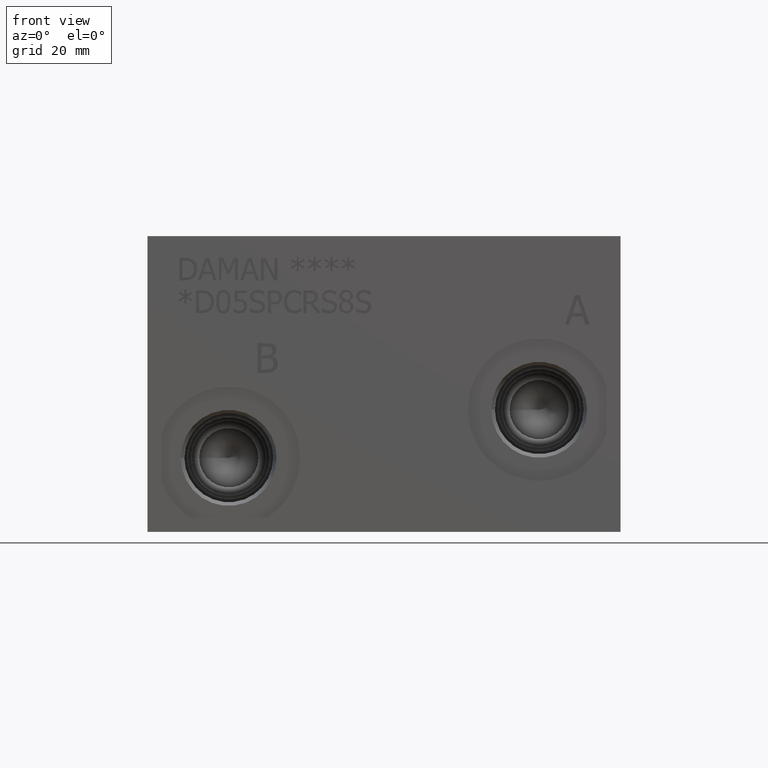
[diagram: clean part render]
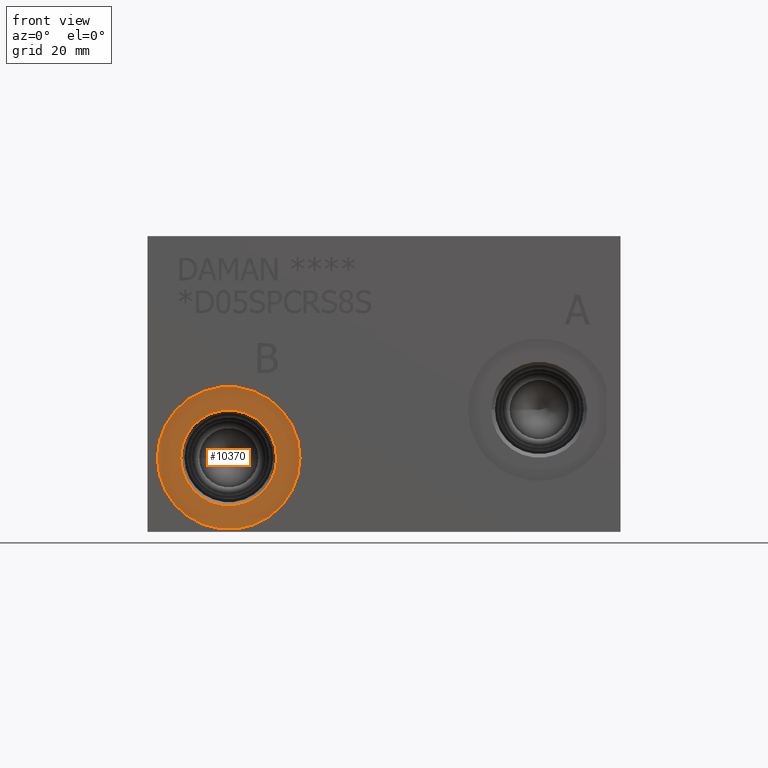
[diagram: same view with one face highlighted and labeled with its STEP entity id]
A machine part, front view. The second image highlights one B-rep face of the part: STEP entity #10370.
In plain terms, the highlighted planar face has unit normal (0, 1, 0).
Its self-contained STEP definition (entity closure, byte-faithful):
#182=CIRCLE('',#10843,15.3162);
#183=CIRCLE('',#10844,15.3162);
#184=CIRCLE('',#10846,10.2997);
#185=CIRCLE('',#10847,10.2997);
#332=FACE_BOUND('',#1705,.T.);
#632=PLANE('',#10845);
#1121=FACE_OUTER_BOUND('',#1704,.T.);
#1704=EDGE_LOOP('',(#8990,#8991));
#1705=EDGE_LOOP('',(#8992,#8993));
#4866=VERTEX_POINT('',#17803);
#4867=VERTEX_POINT('',#17805);
#4868=VERTEX_POINT('',#17809);
#4869=VERTEX_POINT('',#17810);
#6276=EDGE_CURVE('',#4866,#4867,#182,.T.);
#6277=EDGE_CURVE('',#4867,#4866,#183,.T.);
#6278=EDGE_CURVE('',#4868,#4869,#184,.T.);
#6279=EDGE_CURVE('',#4869,#4868,#185,.T.);
#8990=ORIENTED_EDGE('',*,*,#6277,.F.);
#8991=ORIENTED_EDGE('',*,*,#6276,.F.);
#8992=ORIENTED_EDGE('',*,*,#6278,.T.);
#8993=ORIENTED_EDGE('',*,*,#6279,.T.);
#10370=ADVANCED_FACE('',(#1121,#332),#632,.F.);
#10843=AXIS2_PLACEMENT_3D('',#17806,#12691,#12692);
#10844=AXIS2_PLACEMENT_3D('',#17807,#12693,#12694);
#10845=AXIS2_PLACEMENT_3D('',#17808,#12695,#12696);
#10846=AXIS2_PLACEMENT_3D('',#17811,#12697,#12698);
#10847=AXIS2_PLACEMENT_3D('',#17812,#12699,#12700);
#12691=DIRECTION('center_axis',(0.,1.,0.));
#12692=DIRECTION('ref_axis',(1.,0.,0.));
#12693=DIRECTION('center_axis',(0.,1.,0.));
#12694=DIRECTION('ref_axis',(1.,0.,0.));
#12695=DIRECTION('center_axis',(0.,1.,0.));
#12696=DIRECTION('ref_axis',(0.,0.,1.));
#12697=DIRECTION('center_axis',(0.,1.,0.));
#12698=DIRECTION('ref_axis',(1.,0.,0.));
#12699=DIRECTION('center_axis',(0.,1.,0.));
#12700=DIRECTION('ref_axis',(1.,0.,0.));
#17803=CARTESIAN_POINT('',(2.1336,0.7874,15.875));
#17805=CARTESIAN_POINT('',(32.766,0.7874,15.875));
#17806=CARTESIAN_POINT('Origin',(17.4498,0.7874,15.875));
#17807=CARTESIAN_POINT('Origin',(17.4498,0.7874,15.875));
#17808=CARTESIAN_POINT('Origin',(27.7495,0.7874,15.875));
#17809=CARTESIAN_POINT('',(27.7495,0.7874,15.875));
#17810=CARTESIAN_POINT('',(7.1501,0.7874,15.875));
#17811=CARTESIAN_POINT('Origin',(17.4498,0.7874,15.875));
#17812=CARTESIAN_POINT('Origin',(17.4498,0.7874,15.875));